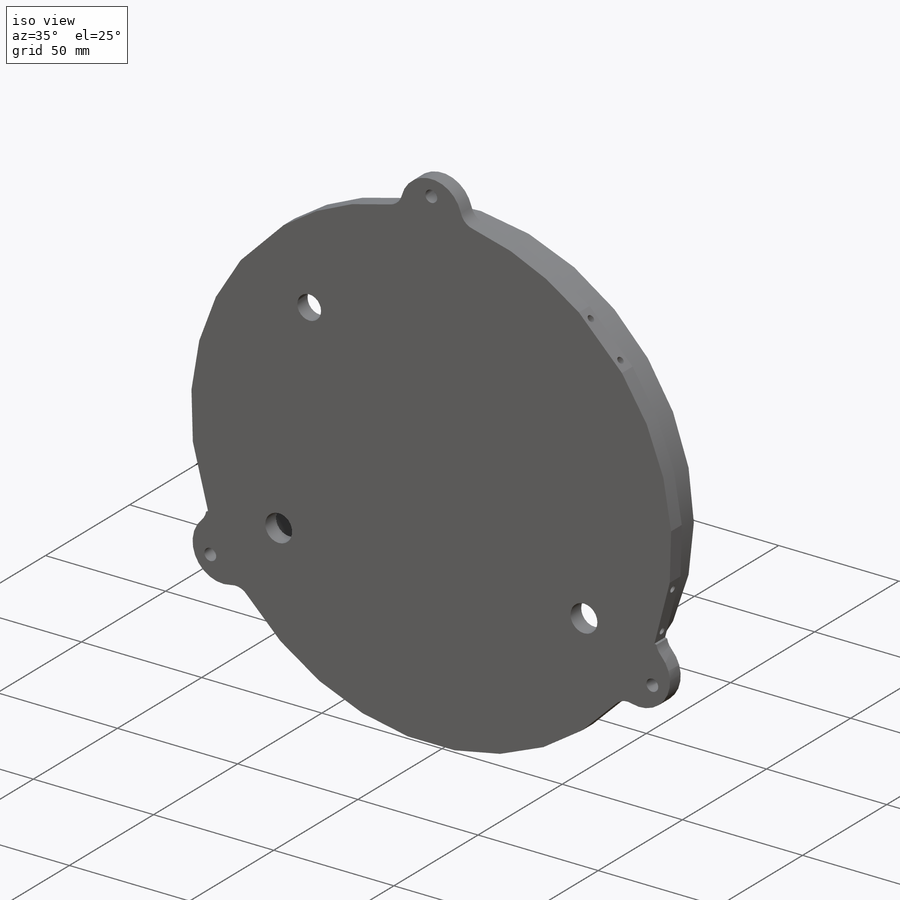
[diagram: iso view]
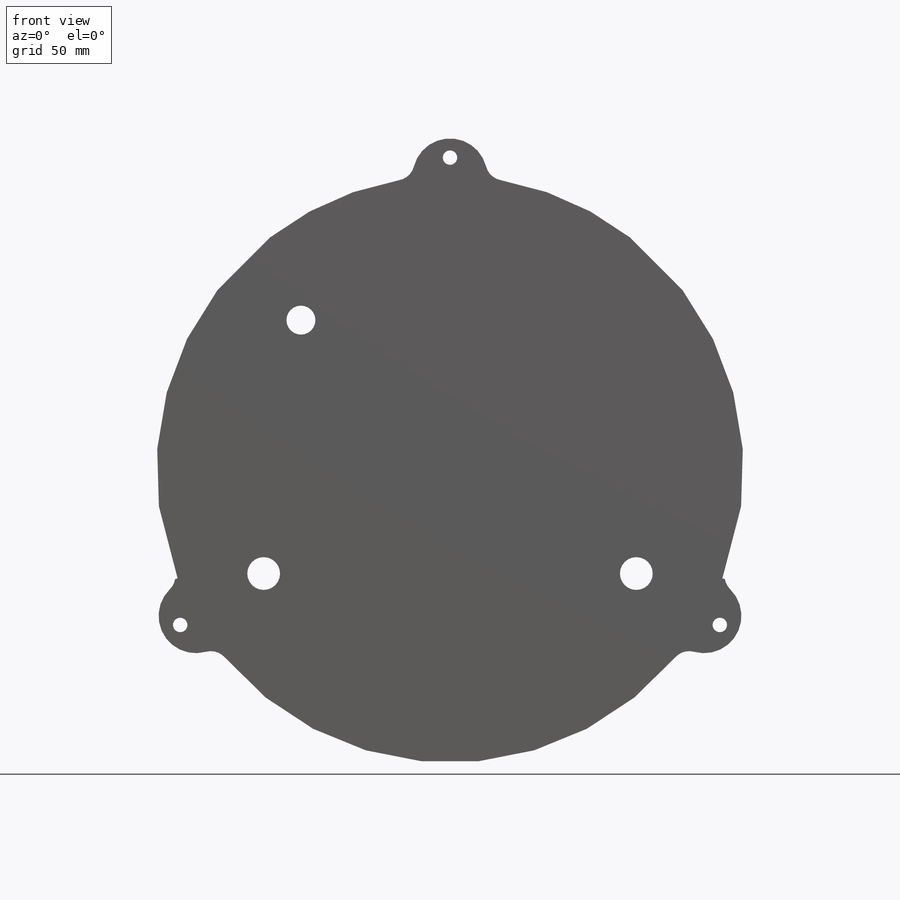
[diagram: front view]
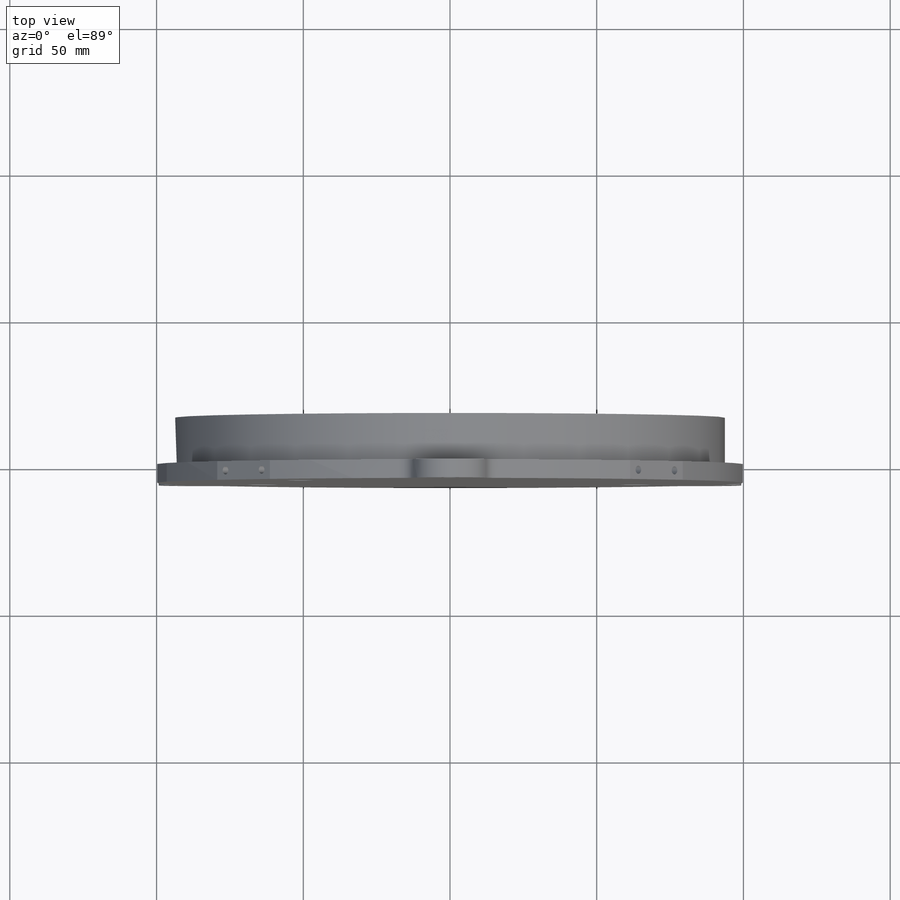
[diagram: top view]
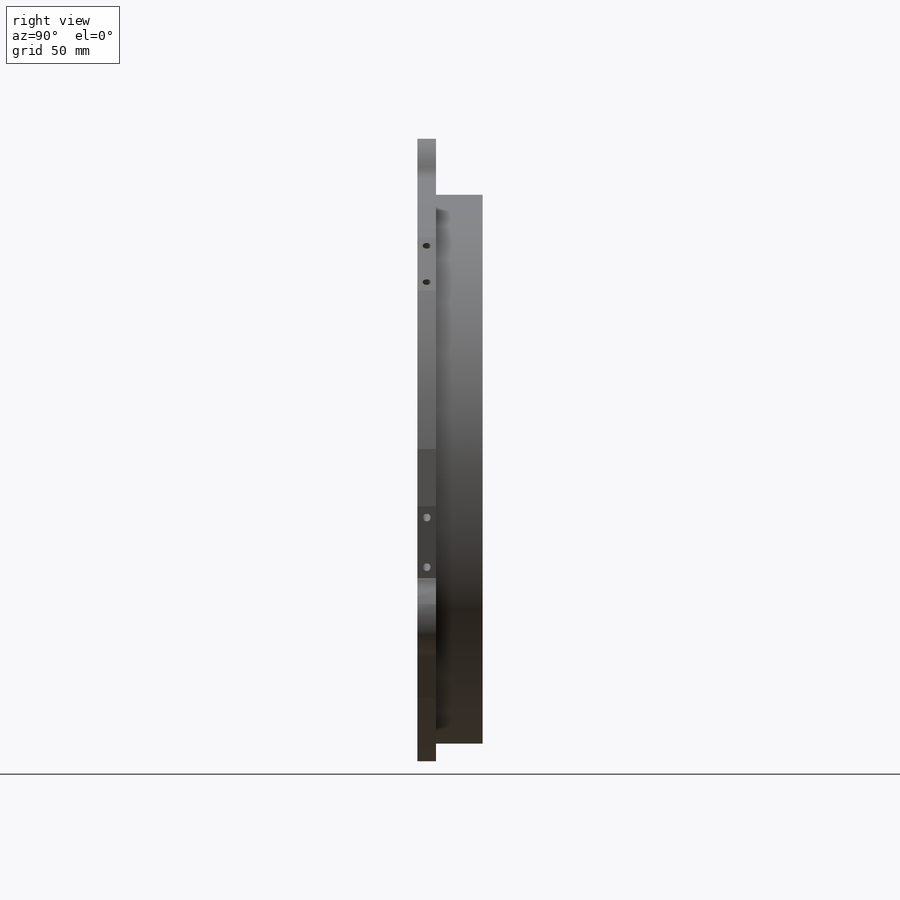
[diagram: right view]
SOLIDWORKS PART (.sldprt)
format: sldprt  version: not decoded by parser v0  size: 1,329,664 bytes
history: native  units: mm
features: sketch x19, extrude x5, hole x4, cut_extrude x3, material x1, fillet x1, mirror x1 (+11 scaffold rows collapsed)
feature tree (45):
  scaffold x11  (default folders/planes/origin — collapsed)
  material  "6061 Alloy"
  sketch  "Sketch1"  dims[D1=98.425mm]
  extrude  "Extrude1"  Depth=6.35mm
  sketch  "Sketch2"  dims[D1=88.9mm]
  extrude  "Extrude2"  Depth=15.875mm
  sketch  "Sketch3"  dims[D1=82.55mm]
  cut_extrude  "Cut-Extrude1"  Depth=19.05mm
  sketch  "Sketch5"  dims[c1.D1=~10.110031mm c1.D3=~8.083123mm c1.D5=~4.356395mm c2.D3=7.05mm c2.D1=50.8mm c2.D2=50.8mm c3.D3=38.1mm c3.D4=38.1mm c3.D5=38.1mm c3.D6=38.1mm c3.D1=31.75mm c3.D2=31.75mm c4.D3=31.75mm c4.D4=31.75mm c4.D2=31.75mm c5.D3=31.75mm c5.D2=31.75mm c5.D5=25.4mm c5.D6=25.4mm c5.D7=25.4mm c6.D5=25.4mm c6.D6=25.4mm c6.D8=25.4mm c6.D9=10.16mm c6.D2=57.15mm c6.D3=25.4mm c7.D5=57.15mm c7.D7=63.5mm c7.D8=79.375mm c7.D9=0.0deg c8.D9=31.75mm c8.D10=31.75mm c8.D11=~138.065664mm c9.D11=~179.835115deg c10.D11=31.75mm c10.D12=31.75mm c10.D1=63.5mm c10.D2=63.5mm c10.D3=73.66mm c10.D4=73.66mm c10.D5=35.56mm c10.D6=35.56mm]
  sketch  "Sketch7"
  sketch  "Sketch8"  dims[c1.D1=12.7mm c1.D2=12.7mm c1.D3=12.7mm c2.D1=30.0deg c2.D4=~86.562005mm c3.D4=120.0deg c3.D5=~86.562005mm c4.D5=120.0deg]
  extrude  "Extrude3"  [1 undecoded]
  sketch  "Sketch10"  dims[D1=30.0deg]
  cut_extrude  "Cut-Extrude2"  [1 undecoded]
  hole  "#10 (0.1935) Diameter Hole1"  Diameter=4.9149mm Depth=330.2mm
  sketch  "3DSketch2"  dims[D1=106.3625mm D2=106.3625mm D3=106.3625mm]
  sketch  "Sketch11"  dims[hole-wizard template sketch: 47 standard entries collapsed; hole parameters kept: c15.Hole Depth=330.2mm c15.D3=~14.816244mm c15.Drill Angle=118.0deg]
  hole  "1/8 NPT Tapped Hole1"  Diameter=8.4328mm Depth=11.176mm
  sketch  "3DSketch6"  dims[c1.D1=~28.653762mm c1.D2=28.575mm c2.D1=~66.400835mm c2.D3=25.4mm c2.D2=~42.972162mm c3.D3=41.91mm c3.D2=~58.511886mm c4.D3=57.15mm c4.D1=~25.010304mm c4.D2=25.4mm c5.D1=50.8mm c5.D2=50.8mm]
  sketch  "Sketch16"  dims[hole-wizard template sketch: 51 standard entries collapsed; hole parameters kept: c13.Tap Drill Depth=11.176mm c13.Thread Dia.=~10.252634mm c13.D4=~22.362017mm c13.Thread Angle=3.43deg c13.Thread Depth=6.35mm c13.D6=~25.48394mm c13.Drill Angle=118.0deg]
  fillet  "Fillet1"  Radius=6.35mm
  sketch  "Sketch22"  dims[c1.D1=~68.530608mm c2.D1=45.164deg c2.D2=100.0125mm c3.D2=104.549deg c3.D3=25.4mm c3.D4=25.4mm c3.D5=12.7mm c3.D6=12.7mm]
  cut_extrude  "Cut-Extrude5"  [1 undecoded]
  hole  "Tap Drill for #6 Tap2"  Diameter=2.7051mm Depth=9.525mm
  sketch  "3DSketch11"  dims[D1=17.4625mm D2=~8.73125mm D3=17.4625mm D4=~8.73125mm D5=17.4625mm D6=~8.73125mm D7=17.4625mm D8=~8.73125mm]
  sketch  "Sketch23"  dims[hole-wizard template sketch: 47 standard entries collapsed; hole parameters kept: c15.Hole Depth=9.525mm c15.D3=~14.816244mm c15.Drill Angle=118.0deg]
  sketch  "Sketch24"  dims[c1.D1=30.353mm c1.D4=28.829mm c1.D5=28.829mm c1.D6=28.829mm c1.D8=28.829mm c1.D11=39.9288mm c1.D12=39.9288mm c1.D15=25.654mm c1.D17=25.654mm c1.D18=25.654mm c1.D19=25.654mm c1.D21=25.654mm c1.D23=25.654mm c1.D25=25.654mm c1.D26=27.2288mm c1.D27=27.2288mm c2.D18=25.654mm c2.D29=~13.70838mm c2.D2=69.85mm c2.D3=44.45mm c2.D7=31.75mm c2.D9=12.7mm c2.D10=33.655mm c2.D13=34.925mm c2.D14=34.925mm c2.D15=31.75mm c2.D16=25.4mm c2.D17=57.15mm c3.D18=9.525mm c3.D20=19.05mm c3.D22=47.625mm c3.D24=59.055mm c3.D16=39.6875mm c4.D18=26.9875mm c4.D20=26.9875mm c4.D22=26.9875mm c4.D27=28.575mm c4.D28=53.975mm c4.D29=12.7mm c4.D30=25.4mm c4.D31=44.45mm c4.D32=19.05mm]
  sketch  "Sketch25"  dims[c1.D1=25.4mm c1.D2=25.4mm c2.D1=45.0deg c2.D2=3.175mm c2.D3=3.175mm]
  extrude  "Boss-Extrude1"  Depth=6.35mm
  sketch  "Sketch26"  dims[c1.D3=28.575mm c1.D1=44.45mm c1.D2=6.35mm c2.D3=3.175mm]
  extrude  "Boss-Extrude2"  Depth=6.35mm
  hole  "#6 Clearance Hole1"  Diameter=3.7973mm Depth=25.4mm
  sketch  "Sketch28"  dims[D1=12.7mm D2=12.7mm D3=~36.477973mm]
  sketch  "Sketch27"  dims[hole-wizard template sketch: 50 standard entries collapsed; hole parameters above]
  mirror  "Mirror1"
decode coverage: 28 of 33 modeling features carry decoded parameters
note: ~ marks probable driven/reference dimensions
note: 3 parameter values undecoded
summary: no parameter record found for 3 features; Diameter pulled from absorbed wizard sketch
note: suppression state not decoded; provenance and decode notes live in map.json
